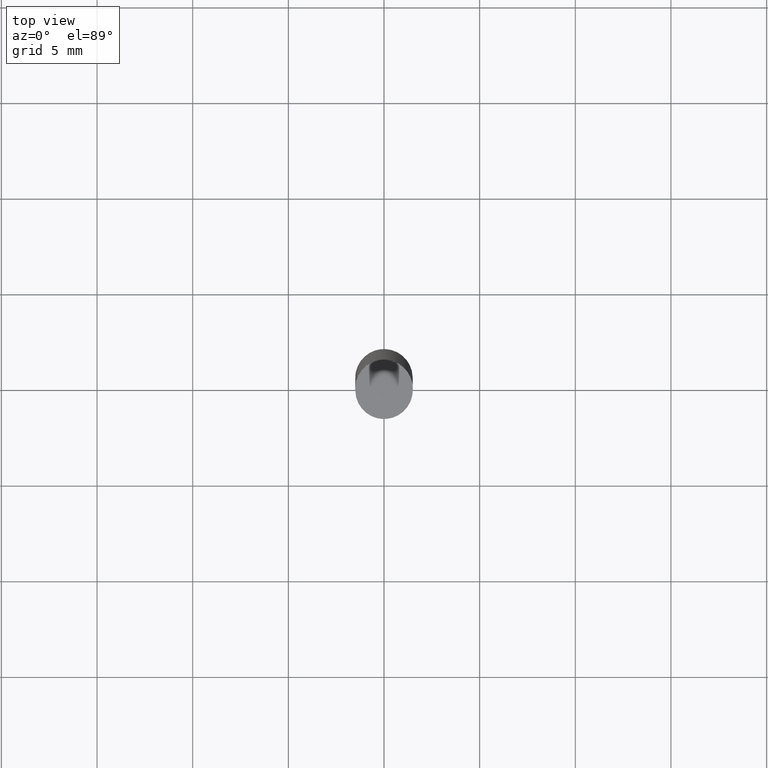
[diagram: clean part render]
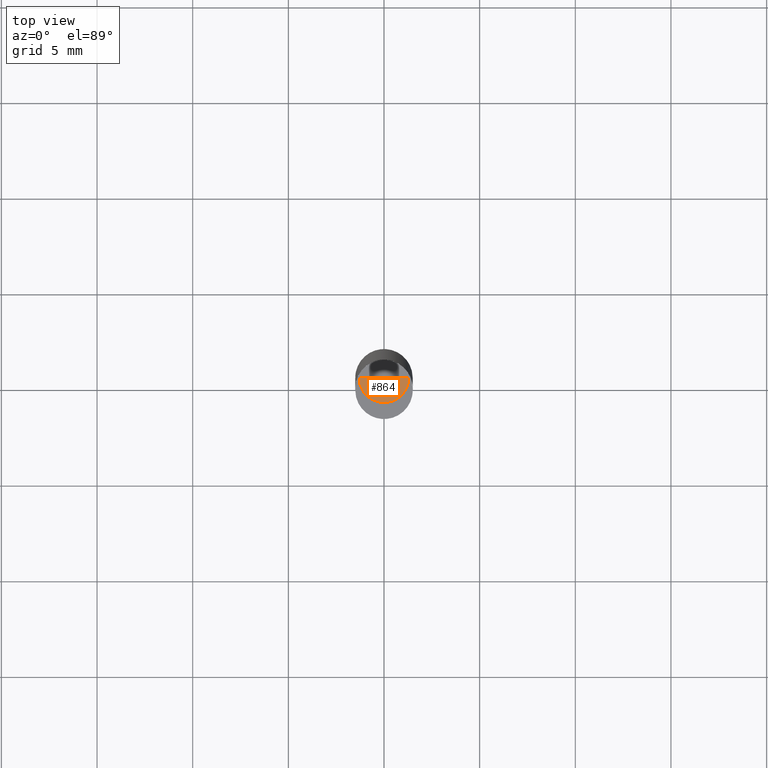
[diagram: same view with one face highlighted and labeled with its STEP entity id]
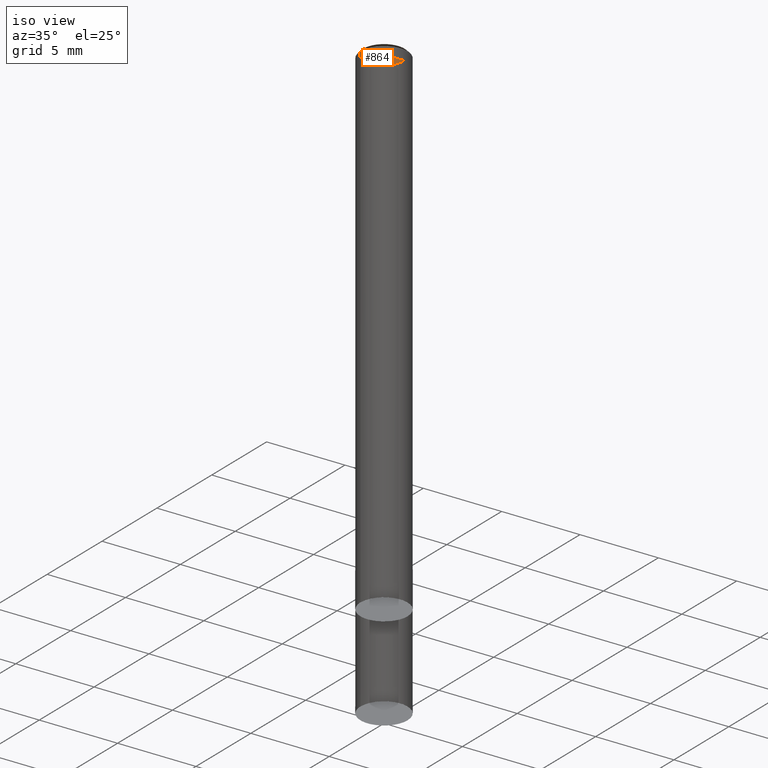
[diagram: same view with one face highlighted and labeled with its STEP entity id]
A machine part, top view. The second image highlights one B-rep face of the part: STEP entity #864.
A second angle (iso view) of the same face is appended — the face is thin or edge-on in the first view.
In plain terms, the highlighted face is a freeform B-spline surface patch.
Its self-contained STEP definition (entity closure, byte-faithful):
#595=CARTESIAN_POINT('',(1.3,0.0,32.0));
#599=CARTESIAN_POINT('',(-1.3,0.0,32.0));
#600=CARTESIAN_POINT('',(0.0,0.0,32.0));
#604=CARTESIAN_POINT('',(-1.3,-1.3,32.0));
#605=CARTESIAN_POINT('',(0.0,-1.3,32.0));
#606=CARTESIAN_POINT('',(1.3,-1.3,32.0));
#849=(
BOUNDED_SURFACE()
B_SPLINE_SURFACE(1,2,(
(#599,#604,#605,#606,#595),
(#600,#600,#600,#600,#600)
), .UNSPECIFIED.,.F.,.F.,.F.)
B_SPLINE_SURFACE_WITH_KNOTS((2,2),(3,2,3),(
0.0,1.0),(
0.0,0.5,1.0), .UNSPECIFIED.)
GEOMETRIC_REPRESENTATION_ITEM()
RATIONAL_B_SPLINE_SURFACE(((1.0,0.707106781187,1.0,0.707106781187,1.0),
(1.0,0.707106781187,1.0,0.707106781187,1.0)
))
REPRESENTATION_ITEM('')
SURFACE()
);
#850=(
BOUNDED_CURVE()
B_SPLINE_CURVE(2,(#595,#606,#605,#604,#599),.UNSPECIFIED.,.F.,.F.)
B_SPLINE_CURVE_WITH_KNOTS((3,2,3),
(0.0,0.5,1.0),.UNSPECIFIED.)
CURVE()
GEOMETRIC_REPRESENTATION_ITEM()
RATIONAL_B_SPLINE_CURVE((1.0,0.707106781187,1.0,0.707106781187,1.0))
REPRESENTATION_ITEM('')
);
#851=(
BOUNDED_CURVE()
B_SPLINE_CURVE(1,(#599,#600),.UNSPECIFIED.,.F.,.F.)
B_SPLINE_CURVE_WITH_KNOTS((2,2),
(0.0,1.0),.UNSPECIFIED.)
CURVE()
GEOMETRIC_REPRESENTATION_ITEM()
RATIONAL_B_SPLINE_CURVE((1.0,1.0))
REPRESENTATION_ITEM('')
);
#852=(
BOUNDED_CURVE()
B_SPLINE_CURVE(1,(#600,#595),.UNSPECIFIED.,.F.,.F.)
B_SPLINE_CURVE_WITH_KNOTS((2,2),
(0.0,1.0),.UNSPECIFIED.)
CURVE()
GEOMETRIC_REPRESENTATION_ITEM()
RATIONAL_B_SPLINE_CURVE((1.0,1.0))
REPRESENTATION_ITEM('')
);
#853=VERTEX_POINT('',#595);
#854=VERTEX_POINT('',#599);
#855=VERTEX_POINT('',#600);
#856=EDGE_CURVE('',#853,#854,#850,.T.);
#857=EDGE_CURVE('',#854,#855,#851,.T.);
#858=EDGE_CURVE('',#855,#853,#852,.T.);
#859=ORIENTED_EDGE('',*,*,#856,.T.);
#860=ORIENTED_EDGE('',*,*,#857,.T.);
#861=ORIENTED_EDGE('',*,*,#858,.T.);
#862=EDGE_LOOP('',(#859,#860,#861));
#863=FACE_OUTER_BOUND('',#862,.T.);
#864=ADVANCED_FACE('',(#863),#849,.T.);